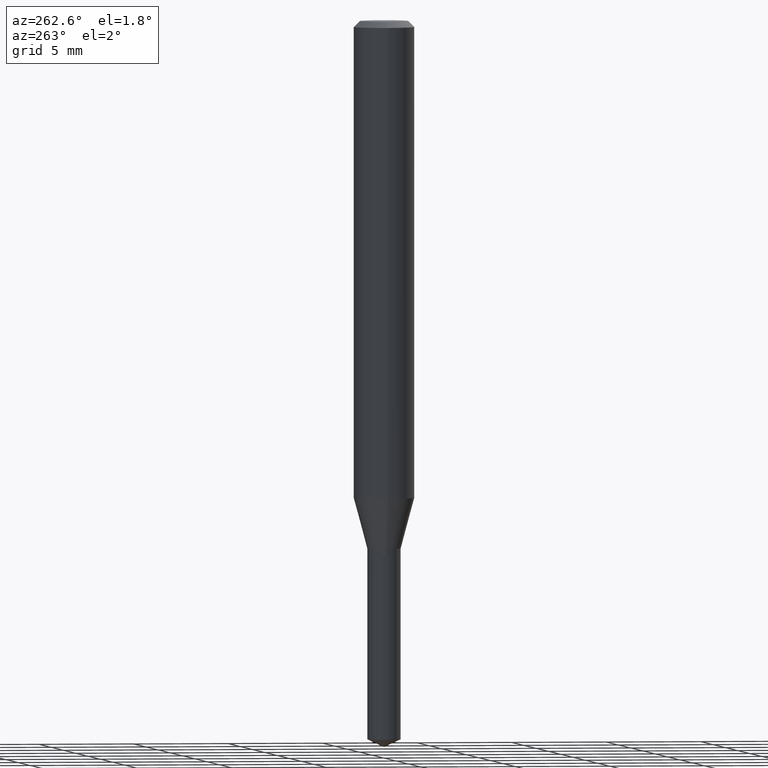
[diagram: clean part render]
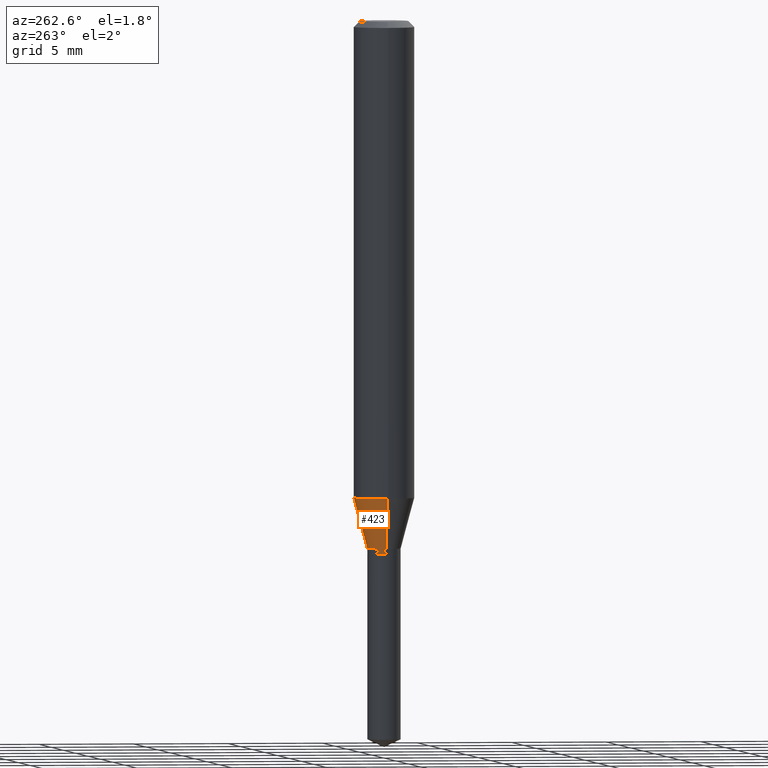
[diagram: same view with one face highlighted and labeled with its STEP entity id]
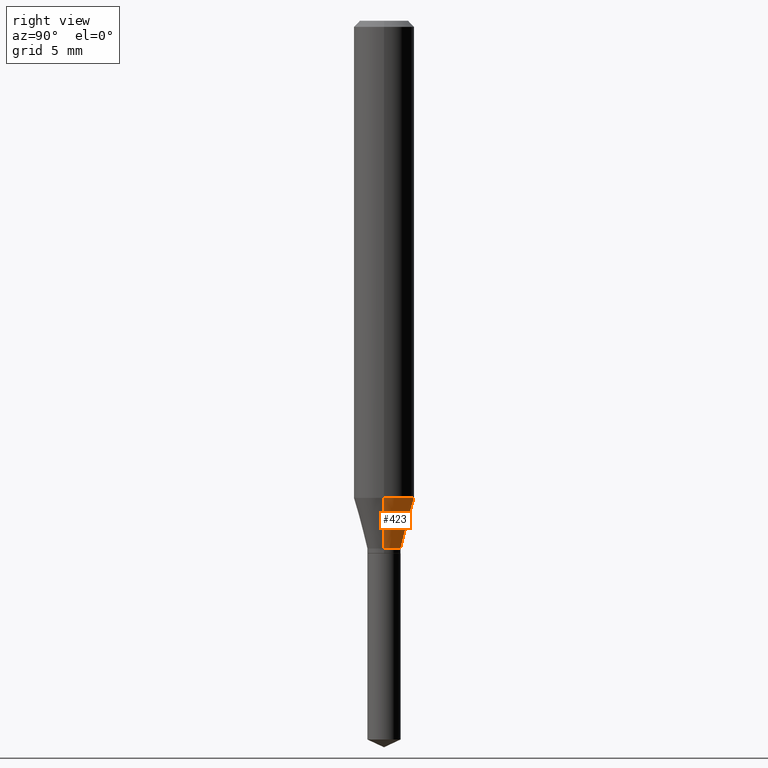
[diagram: same view with one face highlighted and labeled with its STEP entity id]
A machine part, auxiliary view. The second image highlights one B-rep face of the part: STEP entity #423.
A second angle (right view) of the same face is appended — the face is thin or edge-on in the first view.
In plain terms, the highlighted conical surface has half-angle 15 deg.
Its self-contained STEP definition (entity closure, byte-faithful):
#2 = ORIENTED_EDGE ( 'NONE', *, *, #166, .F. ) ;
#14 = VECTOR ( 'NONE', #380, 39.37007874015748854 ) ;
#17 = DIRECTION ( 'NONE',  ( -2.445468806185136597E-29, 3.491481338843145583E-15, 1.000000000000000000 ) ) ;
#25 = ORIENTED_EDGE ( 'NONE', *, *, #42, .T. ) ;
#42 = EDGE_CURVE ( 'NONE', #74, #85, #152, .T. ) ;
#43 = ORIENTED_EDGE ( 'NONE', *, *, #130, .T. ) ;
#48 = LINE ( 'NONE', #90, #14 ) ;
#73 = CARTESIAN_POINT ( 'NONE',  ( -0.06250000000000012490, -2.995075684793045236E-15, -0.9850159748476928767 ) ) ;
#74 = VERTEX_POINT ( 'NONE', #342 ) ;
#85 = VERTEX_POINT ( 'NONE', #417 ) ;
#87 = DIRECTION ( 'NONE',  ( -2.445468806185136597E-29, 3.491481338843145583E-15, 1.000000000000000000 ) ) ;
#90 = CARTESIAN_POINT ( 'NONE',  ( -0.03445000000000000145, -3.559885242468021174E-15, -1.089700000000000113 ) ) ;
#93 = CARTESIAN_POINT ( 'NONE',  ( 2.664827358099943591E-29, -3.804667214937376339E-15, -1.089700000000000113 ) ) ;
#122 = AXIS2_PLACEMENT_3D ( 'NONE', #299, #221, #223 ) ;
#127 = AXIS2_PLACEMENT_3D ( 'NONE', #93, #17, #276 ) ;
#130 = EDGE_CURVE ( 'NONE', #85, #372, #48, .T. ) ;
#150 = FACE_OUTER_BOUND ( 'NONE', #457, .T. ) ;
#152 = CIRCLE ( 'NONE', #127, 0.03445000000000000145 ) ;
#154 = ORIENTED_EDGE ( 'NONE', *, *, #459, .F. ) ;
#157 = DIRECTION ( 'NONE',  ( 0.2588190451025212391, 1.565188264969622362E-15, 0.9659258262890679791 ) ) ;
#166 = EDGE_CURVE ( 'NONE', #384, #372, #427, .T. ) ;
#184 = CARTESIAN_POINT ( 'NONE',  ( 0.03445000000000000145, -4.045230279183668208E-15, -1.089700000000000113 ) ) ;
#221 = DIRECTION ( 'NONE',  ( -2.445468806185136597E-29, 3.491481338843145583E-15, 1.000000000000000000 ) ) ;
#223 = DIRECTION ( 'NONE',  ( 1.000000000000000000, -6.982962677686265922E-15, 0.000000000000000000 ) ) ;
#276 = DIRECTION ( 'NONE',  ( 1.000000000000000000, -6.982962677686265922E-15, 0.000000000000000000 ) ) ;
#299 = CARTESIAN_POINT ( 'NONE',  ( 2.664827358099943591E-29, -3.804667214937376339E-15, -1.089700000000000113 ) ) ;
#331 = CARTESIAN_POINT ( 'NONE',  ( 0.06250000000000012490, -3.875600061998501888E-15, -0.9850159748476928767 ) ) ;
#342 = CARTESIAN_POINT ( 'NONE',  ( 0.03445000000000000145, -4.045230279183668208E-15, -1.089700000000000113 ) ) ;
#352 = CONICAL_SURFACE ( 'NONE', #122, 0.03445000000000000145, 0.2617993877991499629 ) ;
#372 = VERTEX_POINT ( 'NONE', #73 ) ;
#380 = DIRECTION ( 'NONE',  ( -0.2588190451025212391, 5.211531920934549464E-15, 0.9659258262890679791 ) ) ;
#384 = VERTEX_POINT ( 'NONE', #331 ) ;
#387 = DIRECTION ( 'NONE',  ( 1.000000000000000000, -6.982962677686264344E-15, 0.000000000000000000 ) ) ;
#417 = CARTESIAN_POINT ( 'NONE',  ( -0.03445000000000000145, -3.576993501028352698E-15, -1.089700000000000113 ) ) ;
#423 = ADVANCED_FACE ( 'NONE', ( #150 ), #352, .T. ) ;
#424 = CARTESIAN_POINT ( 'NONE',  ( 2.408825840084076168E-29, -3.439164894643109430E-15, -0.9850159748476928767 ) ) ;
#427 = CIRCLE ( 'NONE', #443, 0.06250000000000012490 ) ;
#443 = AXIS2_PLACEMENT_3D ( 'NONE', #424, #87, #387 ) ;
#456 = LINE ( 'NONE', #184, #468 ) ;
#457 = EDGE_LOOP ( 'NONE', ( #25, #43, #2, #154 ) ) ;
#459 = EDGE_CURVE ( 'NONE', #74, #384, #456, .T. ) ;
#468 = VECTOR ( 'NONE', #157, 39.37007874015748854 ) ;